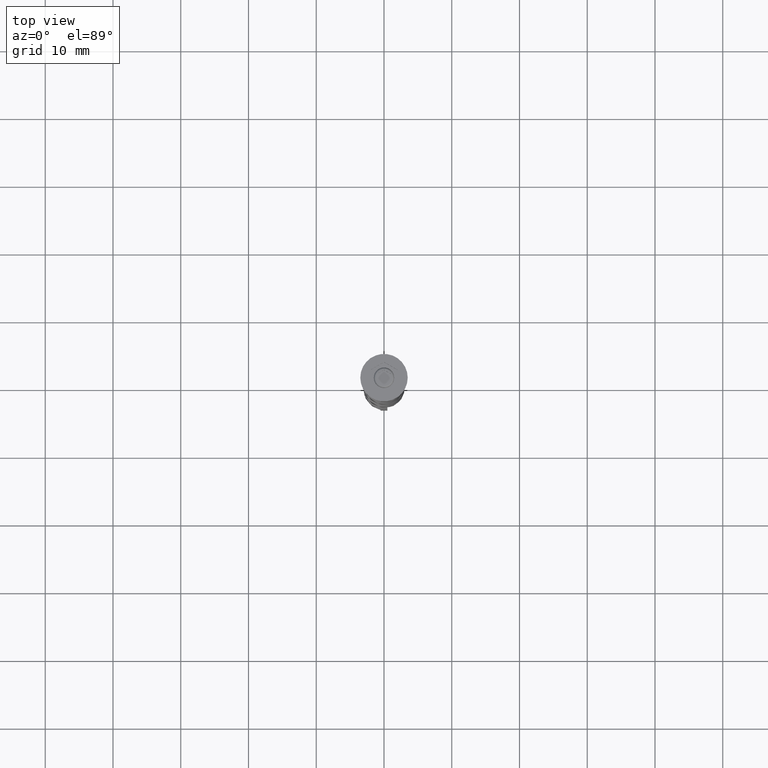
[diagram: clean part render]
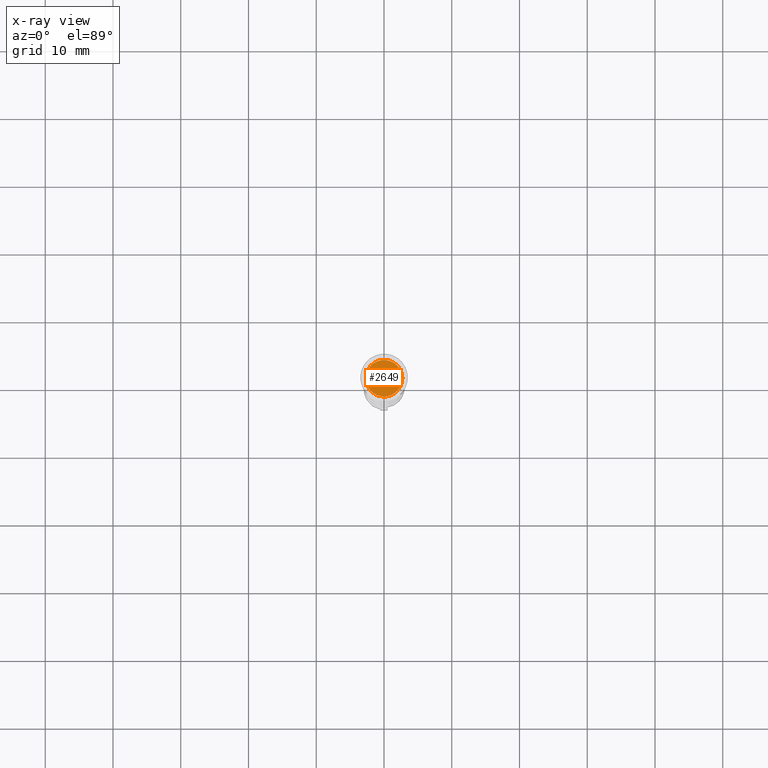
[diagram: x-ray — body ghosted, one internal face saturated and labeled with its STEP entity id]
A machine part, top view, then the same camera in x-ray: the body is ghosted and one INTERNAL B-rep face — a face not visible from any outside direction — is saturated and labeled: STEP entity #2649.
In plain terms, the highlighted planar face has unit normal (0, 0, -1).
Its self-contained STEP definition (entity closure, byte-faithful):
#65 = ORIENTED_EDGE ( 'NONE', *, *, #1523, .T. ) ;
#249 = DIRECTION ( 'NONE',  ( -0.000000000000000000, -0.000000000000000000, 1.000000000000000000 ) ) ;
#320 = DIRECTION ( 'NONE',  ( 0.000000000000000000, 0.000000000000000000, -1.000000000000000000 ) ) ;
#479 = DIRECTION ( 'NONE',  ( -1.000000000000000000, 0.000000000000000000, 0.000000000000000000 ) ) ;
#514 = CARTESIAN_POINT ( 'NONE',  ( 0.000000000000000000, 0.000000000000000000, -5.500000000000000000 ) ) ;
#755 = DIRECTION ( 'NONE',  ( -1.000000000000000000, 0.000000000000000000, 0.000000000000000000 ) ) ;
#783 = AXIS2_PLACEMENT_3D ( 'NONE', #2733, #320, #1725 ) ;
#895 = CIRCLE ( 'NONE', #2119, 2.700000000000002398 ) ;
#1184 = PLANE ( 'NONE',  #783 ) ;
#1454 = VERTEX_POINT ( 'NONE', #1502 ) ;
#1502 = CARTESIAN_POINT ( 'NONE',  ( 2.700000000000002398, 3.490243377569959512E-16, -5.500000000000000000 ) ) ;
#1523 = EDGE_CURVE ( 'NONE', #1954, #1454, #895, .T. ) ;
#1567 = EDGE_CURVE ( 'NONE', #1454, #1954, #2678, .T. ) ;
#1584 = DIRECTION ( 'NONE',  ( -0.000000000000000000, -0.000000000000000000, 1.000000000000000000 ) ) ;
#1670 = ORIENTED_EDGE ( 'NONE', *, *, #1567, .T. ) ;
#1725 = DIRECTION ( 'NONE',  ( -1.000000000000000000, 0.000000000000000000, -0.000000000000000000 ) ) ;
#1734 = EDGE_LOOP ( 'NONE', ( #65, #1670 ) ) ;
#1954 = VERTEX_POINT ( 'NONE', #3259 ) ;
#2101 = CARTESIAN_POINT ( 'NONE',  ( 0.000000000000000000, 0.000000000000000000, -5.500000000000000000 ) ) ;
#2119 = AXIS2_PLACEMENT_3D ( 'NONE', #2101, #1584, #755 ) ;
#2237 = AXIS2_PLACEMENT_3D ( 'NONE', #514, #249, #479 ) ;
#2649 = ADVANCED_FACE ( 'NONE', ( #3044 ), #1184, .F. ) ;
#2678 = CIRCLE ( 'NONE', #2237, 2.700000000000002398 ) ;
#2733 = CARTESIAN_POINT ( 'NONE',  ( 0.000000000000000000, 0.000000000000000000, -5.500000000000000000 ) ) ;
#3044 = FACE_OUTER_BOUND ( 'NONE', #1734, .T. ) ;
#3259 = CARTESIAN_POINT ( 'NONE',  ( -2.700000000000002398, 0.000000000000000000, -5.500000000000000000 ) ) ;